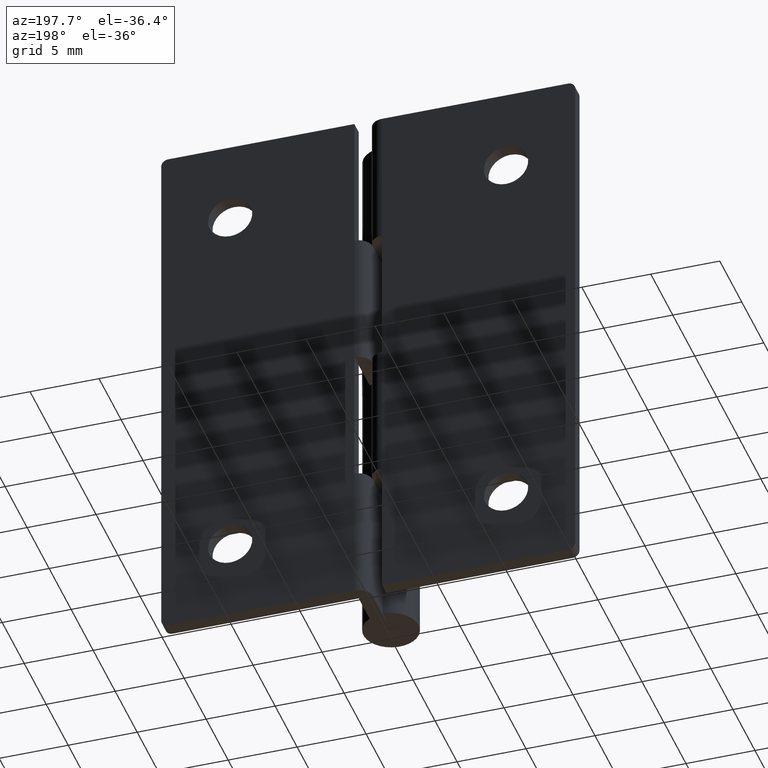
[diagram: clean part render]
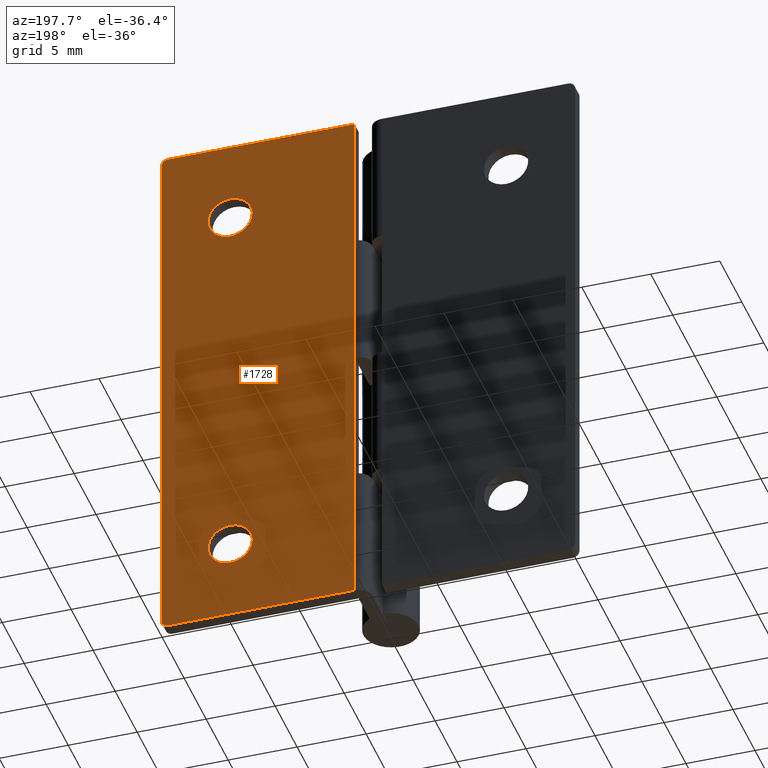
[diagram: same view with one face highlighted and labeled with its STEP entity id]
A machine part, auxiliary view. The second image highlights one B-rep face of the part: STEP entity #1728.
In plain terms, the highlighted face is a freeform B-spline surface patch.
Its self-contained STEP definition (entity closure, byte-faithful):
#330=CARTESIAN_POINT('',(8.404932266027803,5.200001000000000,34.125542553174803));
#331=VERTEX_POINT('',#330);
#337=CARTESIAN_POINT('',(10.0,5.200001000000000,35.600008000000003));
#338=VERTEX_POINT('',#337);
#339=CARTESIAN_POINT('',(10.0,5.200001000000000,35.600008000000003));
#340=CARTESIAN_POINT('',(8.520975213365929,5.200001000000000,35.600008000000003));
#341=CARTESIAN_POINT('',(8.404932266027803,5.200001000000000,34.125542553174803));
#349=(BOUNDED_CURVE()B_SPLINE_CURVE(2,(#339,#340,#341),.UNSPECIFIED.,.F.,.U.)B_SPLINE_CURVE_WITH_KNOTS((3,3),(0.0,0.236331300630565),.UNSPECIFIED.)CURVE()GEOMETRIC_REPRESENTATION_ITEM()RATIONAL_B_SPLINE_CURVE((1.0,0.723120658607777,0.969723356167220))REPRESENTATION_ITEM(''));
#350=EDGE_CURVE('',#338,#331,#349,.T.);
#352=CARTESIAN_POINT('',(11.595067733972201,5.200001000000000,33.874473446825199));
#353=VERTEX_POINT('',#352);
#354=CARTESIAN_POINT('',(11.595067733972193,5.200001000000000,33.874473446825206));
#355=CARTESIAN_POINT('',(11.600000000000003,5.200001000000000,33.937143828777430));
#356=CARTESIAN_POINT('',(11.600000000000000,5.200001000000000,34.000008000000001));
#357=CARTESIAN_POINT('',(11.600000000000001,5.200001000000000,35.600007999999995));
#358=CARTESIAN_POINT('',(10.0,5.200001000000000,35.600008000000003));
#366=(BOUNDED_CURVE()B_SPLINE_CURVE(2,(#354,#355,#356,#357,#358),.UNSPECIFIED.,.F.,.U.)B_SPLINE_CURVE_WITH_KNOTS((3,2,3),(0.736331300630564,0.750000000000000,1.0),.UNSPECIFIED.)CURVE()GEOMETRIC_REPRESENTATION_ITEM()RATIONAL_B_SPLINE_CURVE((0.969723356167218,0.983986122578770,1.0,0.707106781186548,1.0))REPRESENTATION_ITEM(''));
#367=EDGE_CURVE('',#353,#338,#366,.T.);
#443=CARTESIAN_POINT('',(10.0,5.200001000000000,32.400008000000000));
#444=VERTEX_POINT('',#443);
#445=CARTESIAN_POINT('',(10.0,5.200001000000000,32.400008000000000));
#446=CARTESIAN_POINT('',(11.479024786634064,5.200001000000000,32.400008000000007));
#447=CARTESIAN_POINT('',(11.595067733972201,5.200001000000000,33.874473446825192));
#455=(BOUNDED_CURVE()B_SPLINE_CURVE(2,(#445,#446,#447),.UNSPECIFIED.,.F.,.U.)B_SPLINE_CURVE_WITH_KNOTS((3,3),(0.500000000000000,0.736331300630563),.UNSPECIFIED.)CURVE()GEOMETRIC_REPRESENTATION_ITEM()RATIONAL_B_SPLINE_CURVE((1.0,0.723120658607778,0.969723356167217))REPRESENTATION_ITEM(''));
#456=EDGE_CURVE('',#444,#353,#455,.T.);
#458=CARTESIAN_POINT('',(8.404932266027803,5.200001000000000,34.125542553174803));
#459=CARTESIAN_POINT('',(8.400000000000000,5.200001000000001,34.062872171222573));
#460=CARTESIAN_POINT('',(8.400000000000000,5.200001000000000,34.000008000000001));
#461=CARTESIAN_POINT('',(8.400000000000000,5.200001000000000,32.400008000000000));
#462=CARTESIAN_POINT('',(10.0,5.200001000000000,32.400008000000000));
#470=(BOUNDED_CURVE()B_SPLINE_CURVE(2,(#458,#459,#460,#461,#462),.UNSPECIFIED.,.F.,.U.)B_SPLINE_CURVE_WITH_KNOTS((3,2,3),(0.236331300630565,0.250000000000000,0.500000000000000),.UNSPECIFIED.)CURVE()GEOMETRIC_REPRESENTATION_ITEM()RATIONAL_B_SPLINE_CURVE((0.969723356167220,0.983986122578771,1.0,0.707106781186548,1.0))REPRESENTATION_ITEM(''));
#471=EDGE_CURVE('',#331,#444,#470,.T.);
#512=CARTESIAN_POINT('',(8.404932266027803,5.200001000000000,6.125534553174797));
#513=VERTEX_POINT('',#512);
#519=CARTESIAN_POINT('',(10.0,5.200001000000000,7.600000000000000));
#520=VERTEX_POINT('',#519);
#521=CARTESIAN_POINT('',(10.0,5.200001000000000,7.600000000000000));
#522=CARTESIAN_POINT('',(8.520975213365926,5.200001000000000,7.599999999999999));
#523=CARTESIAN_POINT('',(8.404932266027803,5.200001000000000,6.125534553174797));
#531=(BOUNDED_CURVE()B_SPLINE_CURVE(2,(#521,#522,#523),.UNSPECIFIED.,.F.,.U.)B_SPLINE_CURVE_WITH_KNOTS((3,3),(0.0,0.236331300630565),.UNSPECIFIED.)CURVE()GEOMETRIC_REPRESENTATION_ITEM()RATIONAL_B_SPLINE_CURVE((1.0,0.723120658607776,0.969723356167220))REPRESENTATION_ITEM(''));
#532=EDGE_CURVE('',#520,#513,#531,.T.);
#534=CARTESIAN_POINT('',(11.595067733972201,5.200001000000000,5.874465446825204));
#535=VERTEX_POINT('',#534);
#536=CARTESIAN_POINT('',(11.595067733972199,5.200001000000000,5.874465446825204));
#537=CARTESIAN_POINT('',(11.600000000000003,5.200001000000000,5.937135828777437));
#538=CARTESIAN_POINT('',(11.600000000000000,5.200001000000000,6.0));
#539=CARTESIAN_POINT('',(11.600000000000001,5.200001000000000,7.600000000000000));
#540=CARTESIAN_POINT('',(10.0,5.200001000000000,7.600000000000000));
#548=(BOUNDED_CURVE()B_SPLINE_CURVE(2,(#536,#537,#538,#539,#540),.UNSPECIFIED.,.F.,.U.)B_SPLINE_CURVE_WITH_KNOTS((3,2,3),(0.736331300630565,0.750000000000000,1.0),.UNSPECIFIED.)CURVE()GEOMETRIC_REPRESENTATION_ITEM()RATIONAL_B_SPLINE_CURVE((0.969723356167221,0.983986122578771,1.0,0.707106781186548,1.0))REPRESENTATION_ITEM(''));
#549=EDGE_CURVE('',#535,#520,#548,.T.);
#625=CARTESIAN_POINT('',(10.0,5.200001000000000,4.400000000000000));
#626=VERTEX_POINT('',#625);
#627=CARTESIAN_POINT('',(10.0,5.200001000000000,4.400000000000000));
#628=CARTESIAN_POINT('',(11.479024786634083,5.200001000000000,4.400000000000001));
#629=CARTESIAN_POINT('',(11.595067733972197,5.200001000000000,5.874465446825204));
#637=(BOUNDED_CURVE()B_SPLINE_CURVE(2,(#627,#628,#629),.UNSPECIFIED.,.F.,.U.)B_SPLINE_CURVE_WITH_KNOTS((3,3),(0.500000000000000,0.736331300630566),.UNSPECIFIED.)CURVE()GEOMETRIC_REPRESENTATION_ITEM()RATIONAL_B_SPLINE_CURVE((1.0,0.723120658607776,0.969723356167222))REPRESENTATION_ITEM(''));
#638=EDGE_CURVE('',#626,#535,#637,.T.);
#640=CARTESIAN_POINT('',(8.404932266027803,5.200001000000000,6.125534553174797));
#641=CARTESIAN_POINT('',(8.400000000000000,5.200000999999999,6.062864171222563));
#642=CARTESIAN_POINT('',(8.400000000000000,5.200001000000000,6.0));
#643=CARTESIAN_POINT('',(8.400000000000000,5.200001000000000,4.400000000000001));
#644=CARTESIAN_POINT('',(10.0,5.200001000000000,4.400000000000000));
#652=(BOUNDED_CURVE()B_SPLINE_CURVE(2,(#640,#641,#642,#643,#644),.UNSPECIFIED.,.F.,.U.)B_SPLINE_CURVE_WITH_KNOTS((3,2,3),(0.236331300630565,0.250000000000000,0.500000000000000),.UNSPECIFIED.)CURVE()GEOMETRIC_REPRESENTATION_ITEM()RATIONAL_B_SPLINE_CURVE((0.969723356167220,0.983986122578771,1.0,0.707106781186548,1.0))REPRESENTATION_ITEM(''));
#653=EDGE_CURVE('',#513,#626,#652,.T.);
#1080=CARTESIAN_POINT('',(1.000005000000000,5.200001000000000,30.0));
#1081=VERTEX_POINT('',#1080);
#1123=CARTESIAN_POINT('',(1.000005000000000,5.200001000000000,40.000007999999987));
#1124=VERTEX_POINT('',#1123);
#1132=CARTESIAN_POINT('',(1.000005000000000,5.200001000000000,40.000007999999987));
#1133=CARTESIAN_POINT('',(1.000005000000000,5.200001000000000,30.0));
#1134=QUASI_UNIFORM_CURVE('',1,(#1132,#1133),.UNSPECIFIED.,.F.,.U.);
#1135=EDGE_CURVE('',#1124,#1081,#1134,.T.);
#1181=CARTESIAN_POINT('',(1.000005000000000,5.200001000000000,9.999999999999789));
#1182=VERTEX_POINT('',#1181);
#1241=CARTESIAN_POINT('',(1.000005000000000,5.200001000000000,20.0));
#1242=VERTEX_POINT('',#1241);
#1298=CARTESIAN_POINT('',(1.000005000000000,5.200001000000000,20.0));
#1299=CARTESIAN_POINT('',(1.000005000000000,5.200001000000000,9.999999999999789));
#1300=QUASI_UNIFORM_CURVE('',1,(#1298,#1299),.UNSPECIFIED.,.F.,.U.);
#1301=EDGE_CURVE('',#1242,#1182,#1300,.T.);
#1327=CARTESIAN_POINT('',(1.000005000000000,5.200001000000000,0.0));
#1328=VERTEX_POINT('',#1327);
#1329=CARTESIAN_POINT('',(1.000005000000000,5.200001000000000,0.0));
#1330=CARTESIAN_POINT('',(1.000005000000000,5.200001000000000,9.999999999999789));
#1331=QUASI_UNIFORM_CURVE('',1,(#1329,#1330),.UNSPECIFIED.,.F.,.U.);
#1332=EDGE_CURVE('',#1328,#1182,#1331,.T.);
#1388=CARTESIAN_POINT('',(15.0,5.200001000000000,39.500008000000001));
#1389=VERTEX_POINT('',#1388);
#1395=CARTESIAN_POINT('',(14.500000000000000,5.200001000000000,40.000007999999987));
#1396=VERTEX_POINT('',#1395);
#1397=CARTESIAN_POINT('',(14.500000000000000,5.200001000000000,40.000008000000001));
#1398=CARTESIAN_POINT('',(15.000000000000009,5.200001000000000,40.000008000000015));
#1399=CARTESIAN_POINT('',(15.0,5.200001000000000,39.500008000000001));
#1407=(BOUNDED_CURVE()B_SPLINE_CURVE(2,(#1397,#1398,#1399),.UNSPECIFIED.,.F.,.U.)CURVE()GEOMETRIC_REPRESENTATION_ITEM()QUASI_UNIFORM_CURVE()RATIONAL_B_SPLINE_CURVE((1.0,0.707106781186548,1.0))REPRESENTATION_ITEM(''));
#1408=EDGE_CURVE('',#1396,#1389,#1407,.T.);
#1449=CARTESIAN_POINT('',(14.500000000000000,5.200001000000000,0.0));
#1450=VERTEX_POINT('',#1449);
#1456=CARTESIAN_POINT('',(15.0,5.200001000000000,0.499999999999945));
#1457=VERTEX_POINT('',#1456);
#1458=CARTESIAN_POINT('',(15.0,5.200001000000000,0.499999999999945));
#1459=CARTESIAN_POINT('',(15.000000000000009,5.200001000000000,-5.496905E-014));
#1460=CARTESIAN_POINT('',(14.500000000000000,5.200001000000000,0.0));
#1468=(BOUNDED_CURVE()B_SPLINE_CURVE(2,(#1458,#1459,#1460),.UNSPECIFIED.,.F.,.U.)CURVE()GEOMETRIC_REPRESENTATION_ITEM()QUASI_UNIFORM_CURVE()RATIONAL_B_SPLINE_CURVE((1.0,0.707106781186548,1.0))REPRESENTATION_ITEM(''));
#1469=EDGE_CURVE('',#1457,#1450,#1468,.T.);
#1490=CARTESIAN_POINT('',(14.500000000000000,5.200001000000000,0.0));
#1491=CARTESIAN_POINT('',(1.000005000000000,5.200001000000000,0.0));
#1492=QUASI_UNIFORM_CURVE('',1,(#1490,#1491),.UNSPECIFIED.,.F.,.U.);
#1493=EDGE_CURVE('',#1450,#1328,#1492,.T.);
#1547=CARTESIAN_POINT('',(14.500000000000000,5.200001000000000,40.000007999999987));
#1548=CARTESIAN_POINT('',(1.000005000000000,5.200001000000000,40.000007999999987));
#1549=QUASI_UNIFORM_CURVE('',1,(#1547,#1548),.UNSPECIFIED.,.F.,.U.);
#1550=EDGE_CURVE('',#1396,#1124,#1549,.T.);
#1654=CARTESIAN_POINT('',(15.0,5.200001000000000,39.500008000000001));
#1655=CARTESIAN_POINT('',(15.0,5.200001000000000,0.499999999999945));
#1656=QUASI_UNIFORM_CURVE('',1,(#1654,#1655),.UNSPECIFIED.,.F.,.U.);
#1657=EDGE_CURVE('',#1389,#1457,#1656,.T.);
#1696=CARTESIAN_POINT('',(0.300705276884708,5.200001000000000,41.998007946580771));
#1697=CARTESIAN_POINT('',(0.300705276884708,5.200001000000000,-1.998001377092523));
#1698=CARTESIAN_POINT('',(15.699300098624420,5.200001000000000,41.998007946580771));
#1699=CARTESIAN_POINT('',(15.699300098624420,5.200001000000000,-1.998001377092523));
#1700=B_SPLINE_SURFACE_WITH_KNOTS('',1,1,((#1696,#1698),(#1697,#1699)),.UNSPECIFIED.,.F.,.F.,.U.,(2,2),(2,2),(0.0,43.996009323673292),(0.0,15.398594821739710),.UNSPECIFIED.);
#1701=ORIENTED_EDGE('',*,*,#1493,.T.);
#1702=ORIENTED_EDGE('',*,*,#1332,.T.);
#1703=ORIENTED_EDGE('',*,*,#1301,.F.);
#1704=CARTESIAN_POINT('',(1.000005000000000,5.200001000000000,20.0));
#1705=CARTESIAN_POINT('',(1.000005000000000,5.200001000000000,30.0));
#1706=QUASI_UNIFORM_CURVE('',1,(#1704,#1705),.UNSPECIFIED.,.F.,.U.);
#1707=EDGE_CURVE('',#1242,#1081,#1706,.T.);
#1708=ORIENTED_EDGE('',*,*,#1707,.T.);
#1709=ORIENTED_EDGE('',*,*,#1135,.F.);
#1710=ORIENTED_EDGE('',*,*,#1550,.F.);
#1711=ORIENTED_EDGE('',*,*,#1408,.T.);
#1712=ORIENTED_EDGE('',*,*,#1657,.T.);
#1713=ORIENTED_EDGE('',*,*,#1469,.T.);
#1714=EDGE_LOOP('',(#1701,#1702,#1703,#1708,#1709,#1710,#1711,#1712,#1713));
#1715=FACE_OUTER_BOUND('',#1714,.T.);
#1716=ORIENTED_EDGE('',*,*,#638,.T.);
#1717=ORIENTED_EDGE('',*,*,#549,.T.);
#1718=ORIENTED_EDGE('',*,*,#532,.T.);
#1719=ORIENTED_EDGE('',*,*,#653,.T.);
#1720=EDGE_LOOP('',(#1716,#1717,#1718,#1719));
#1721=FACE_BOUND('',#1720,.T.);
#1722=ORIENTED_EDGE('',*,*,#456,.T.);
#1723=ORIENTED_EDGE('',*,*,#367,.T.);
#1724=ORIENTED_EDGE('',*,*,#350,.T.);
#1725=ORIENTED_EDGE('',*,*,#471,.T.);
#1726=EDGE_LOOP('',(#1722,#1723,#1724,#1725));
#1727=FACE_BOUND('',#1726,.T.);
#1728=ADVANCED_FACE('',(#1715,#1721,#1727),#1700,.F.);